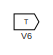
[diagram: root canvas - part 1/2, top left region]
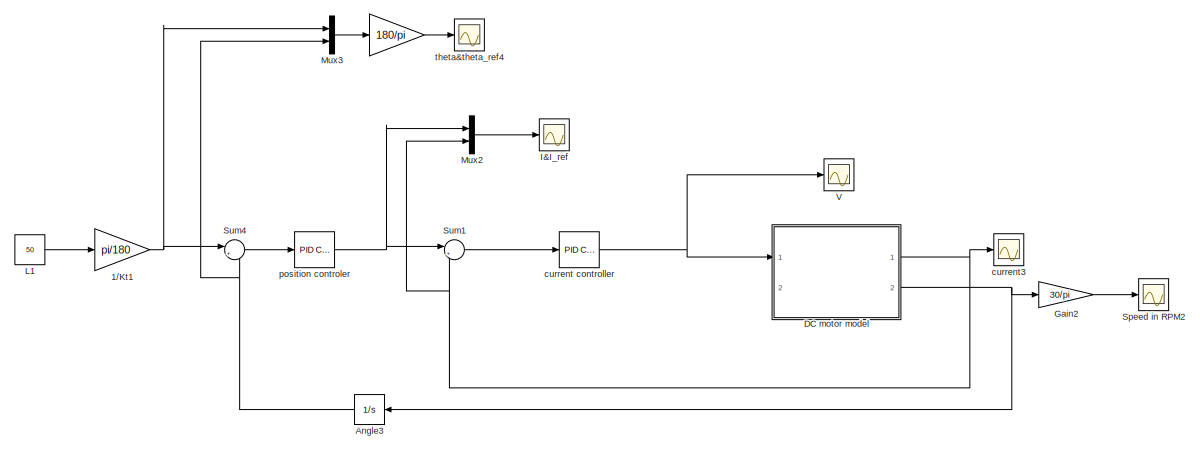
[diagram: root canvas - part 2/2, bottom right region]
MODEL slx_ee32812c18a5
KIND model
CONFIG AbsTol = auto
CONFIG EnableMultiTasking = on
CONFIG FixedStep = auto
CONFIG InitFcn = J=3.2284E-6;\nB=3.5077E-6;\nKm=0.0274;\nRa=4;\nLa=2.75E-6;\nVdc=48;\n
CONFIG MaxStep = auto
CONFIG MinStep = auto
CONFIG RelTol = 1e-3
CONFIG SampleTimeConstraint = Unconstrained
CONFIG Solver = ode45
CONFIG SolverName = ode45
CONFIG StartTime = 0.0
CONFIG StopTime = 10
BLOCK [Gain]   
  Gain = 180/pi
BLOCK [Gain] 1//Kt1
  Gain = pi/180
BLOCK [Integrator] Angle3
  Ports = [1, 1]
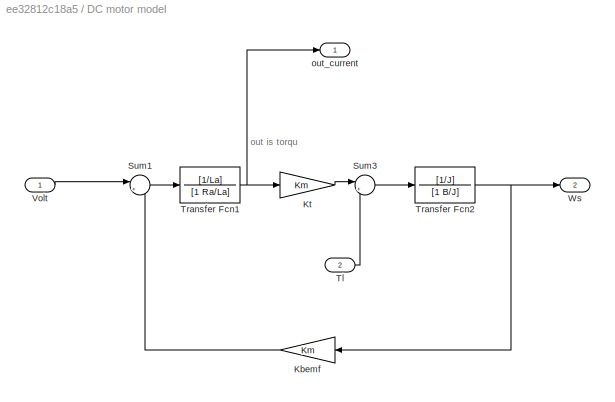
BLOCK [SubSystem] DC motor model
  Ports = [2, 2]
  RequestExecContextInheritance = off
BLOCK [Gain] DC motor model/Kbemf
  Gain = Km
  NameLocation = top
BLOCK [Gain] DC motor model/Kt
  Gain = Km
BLOCK [Sum] DC motor model/Sum1
  Inputs = |+-
  Ports = [2, 1]
BLOCK [Sum] DC motor model/Sum3
  Inputs = |+-
  NameLocation = top
  Ports = [2, 1]
BLOCK [Inport] DC motor model/Tl
  Port = 2
BLOCK [TransferFcn] DC motor model/Transfer Fcn1
  Denominator = [1 Ra/La]
  Numerator = [1/La]
BLOCK [TransferFcn] DC motor model/Transfer Fcn2
  Denominator = [1 B/J]
  Numerator = [1/J]
BLOCK [Inport] DC motor model/Volt
BLOCK [Outport] DC motor model/Ws
  Port = 2
  VectorParamsAs1DForOutWhenUnconnected = off
BLOCK [Outport] DC motor model/out_current
  VectorParamsAs1DForOutWhenUnconnected = off
BLOCK [Gain] Gain2
  Gain = 30/pi
BLOCK [Scope] I&I_ref
  Floating = off
  NumInputPorts = 1
  Ports = [1]
  ScopeSpecificationString = Simulink.scopes.TimeScopeBlockCfg('CurrentConfiguration', extmgr.ConfigurationSet(extmgr.Configuration('Core','General UI',true),extmgr.Configuration('Core','Source UI',true),extmgr.Configuration('Sources','WiredSimulink',true,'DataLoggingVariableName','ScopeData1','DataLoggingSaveFormat','StructureWithTime','DataLoggingDecimation','1','DataLoggingDecimateData',true),extmgr.Configuration('Visuals'...<+1719ch>
BLOCK [Constant] L1
  Value = 50
BLOCK [Mux] Mux2
  DisplayOption = bar
  Inputs = 2
  Ports = [2, 1]
BLOCK [Mux] Mux3
  DisplayOption = bar
  Inputs = 2
  Ports = [2, 1]
BLOCK [Scope] Speed in RPM2
  Floating = off
  NumInputPorts = 1
  Ports = [1]
  ScopeSpecificationString = Simulink.scopes.TimeScopeBlockCfg('CurrentConfiguration', extmgr.ConfigurationSet(extmgr.Configuration('Core','General UI',true),extmgr.Configuration('Core','Source UI',true),extmgr.Configuration('Sources','WiredSimulink',true,'DataLoggingSaveFormat','StructureWithTime','DataLoggingDecimation','1','DataLoggingDecimateData',true),extmgr.Configuration('Visuals','Time Domain',true,'SerializedDisplays...<+1656ch>
BLOCK [Sum] Sum1
  Inputs = |+-
  Ports = [2, 1]
BLOCK [Sum] Sum4
  Inputs = |+-
  Ports = [2, 1]
BLOCK [Scope] V
  Floating = off
  NumInputPorts = 1
  Ports = [1]
  ScopeSpecificationString = Simulink.scopes.TimeScopeBlockCfg('CurrentConfiguration', extmgr.ConfigurationSet(extmgr.Configuration('Core','General UI',true),extmgr.Configuration('Core','Source UI',true),extmgr.Configuration('Sources','WiredSimulink',true,'DataLoggingVariableName','ScopeData3','DataLoggingSaveFormat','StructureWithTime','DataLoggingDecimation','1','DataLoggingDecimateData',true),extmgr.Configuration('Visuals'...<+1688ch>
BLOCK [Goto] V6
  Commented = on
  GotoTag = T
BLOCK [Reference] current controller  REF=simulink/Continuous/PID Controller
  Ports = [1, 1]
  SourceBlock = simulink/Continuous/PID Controller
  SourceProductBaseCode = SL
  SourceType = PID 1dof
BLOCK [Scope] current3
  Floating = off
  NumInputPorts = 1
  Ports = [1]
  ScopeSpecificationString = Simulink.scopes.TimeScopeBlockCfg('CurrentConfiguration', extmgr.ConfigurationSet(extmgr.Configuration('Core','General UI',true),extmgr.Configuration('Core','Source UI',true),extmgr.Configuration('Sources','WiredSimulink',true,'DataLoggingVariableName','ScopeData2','DataLoggingSaveFormat','StructureWithTime','DataLoggingDecimation','1','DataLoggingDecimateData',true),extmgr.Configuration('Visuals'...<+1667ch>
BLOCK [Reference] position controler  REF=simulink/Continuous/PID Controller
  Ports = [1, 1]
  SourceBlock = simulink/Continuous/PID Controller
  SourceProductBaseCode = SL
  SourceType = PID 1dof
BLOCK [Scope] theta&theta_ref4
  Floating = off
  NumInputPorts = 1
  Ports = [1]
  ScopeSpecificationString = Simulink.scopes.TimeScopeBlockCfg('CurrentConfiguration', extmgr.ConfigurationSet(extmgr.Configuration('Core','General UI',true),extmgr.Configuration('Core','Source UI',true),extmgr.Configuration('Sources','WiredSimulink',true,'DataLoggingVariableName','ScopeData10','DataLoggingSaveFormat','StructureWithTime','DataLoggingDecimation','1','DataLoggingDecimateData',true),extmgr.Configuration('Visuals...<+1698ch>
ANNOTATION DC motor model: out is torqu
LINE   :1 -> theta&theta_ref4:1
NET 1//Kt1:1 -> Mux3:1, Sum4:1
NET Angle3:1 -> Mux3:2, Sum4:2
LINE DC motor model/Kbemf:1 -> DC motor model/Sum1:2
LINE DC motor model/Kt:1 -> DC motor model/Sum3:1
LINE DC motor model/Sum1:1 -> DC motor model/Transfer Fcn1:1
LINE DC motor model/Sum3:1 -> DC motor model/Transfer Fcn2:1
LINE DC motor model/Tl:1 -> DC motor model/Sum3:2
NET DC motor model/Transfer Fcn1:1 -> DC motor model/Kt:1, DC motor model/out_current:1
NET DC motor model/Transfer Fcn2:1 -> DC motor model/Kbemf:1, DC motor model/Ws:1
LINE DC motor model/Volt:1 -> DC motor model/Sum1:1
NET DC motor model:1 -> Mux2:2, Sum1:2, current3:1
NET DC motor model:2 -> Angle3:1, Gain2:1
LINE Gain2:1 -> Speed in RPM2:1
LINE L1:1 -> 1//Kt1:1
LINE Mux2:1 -> I&I_ref:1
LINE Mux3:1 ->   :1
LINE Sum1:1 -> current controller:1
LINE Sum4:1 -> position controler:1
NET current controller:1 -> DC motor model:1, V:1
NET position controler:1 -> Mux2:1, Sum1:1
note: NET lines group one-source signal fan-out (src -> all destinations, sorted); 1:1 wires keep LINE
